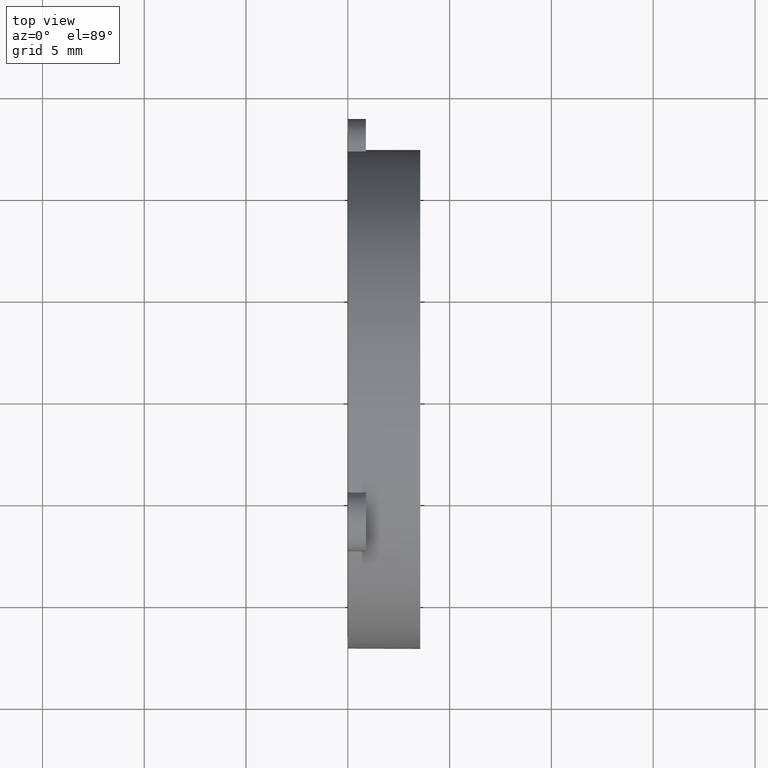
[diagram: clean part render]
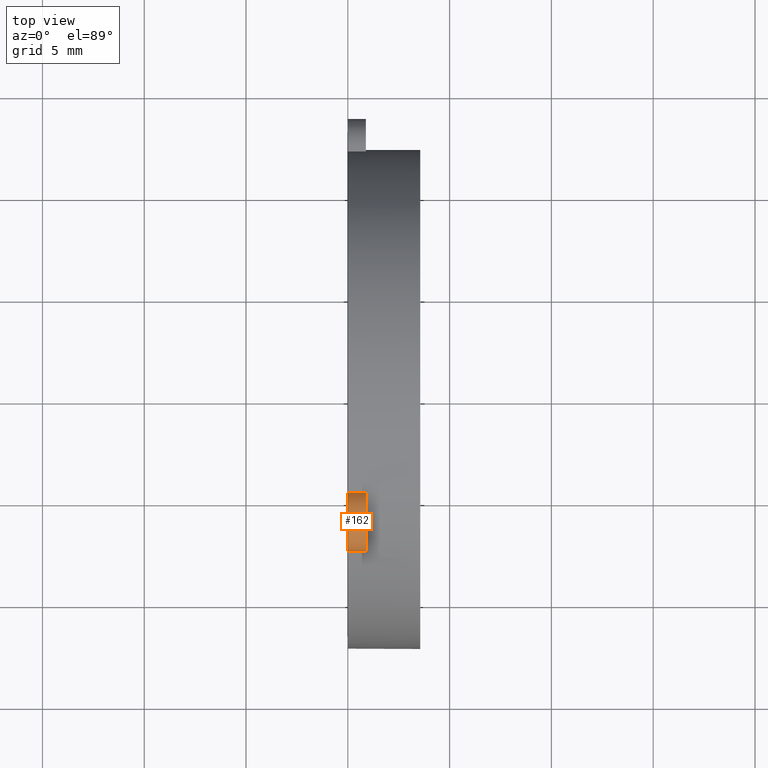
[diagram: same view with one face highlighted and labeled with its STEP entity id]
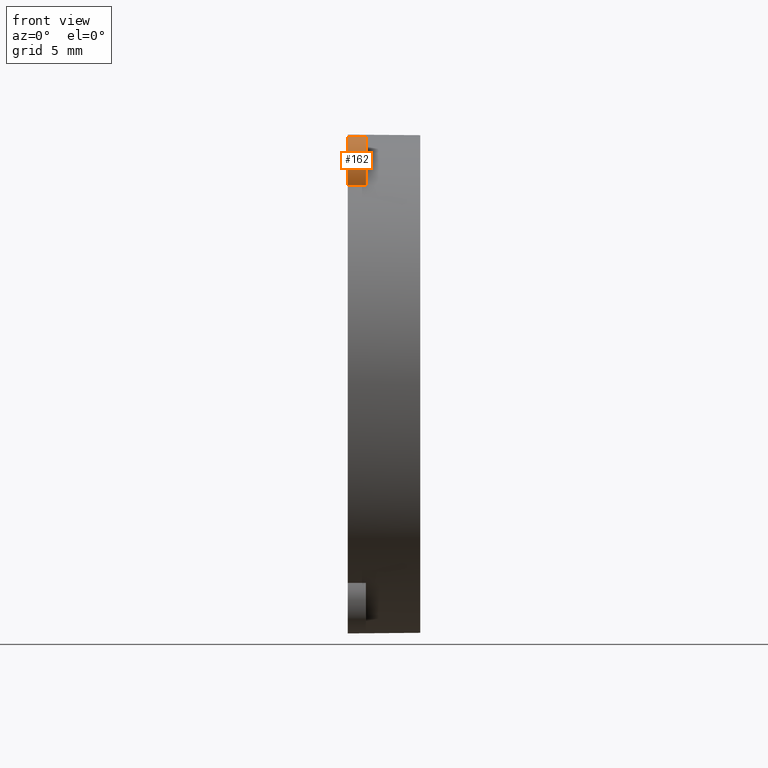
[diagram: same view with one face highlighted and labeled with its STEP entity id]
A machine part, top view. The second image highlights one B-rep face of the part: STEP entity #162.
A second angle (front view) of the same face is appended — the face is thin or edge-on in the first view.
In plain terms, the highlighted cylindrical surface (edge-blend (fillet) strip) has radius 1.524 mm, axis along (1, 0, 0).
Its self-contained STEP definition (entity closure, byte-faithful):
#23=LINE('',#285,#29);
#24=LINE('',#289,#30);
#29=VECTOR('',#229,0.393700787401575);
#30=VECTOR('',#232,0.393700787401575);
#33=CYLINDRICAL_SURFACE('',#186,0.06);
#40=FACE_OUTER_BOUND('',#50,.T.);
#50=EDGE_LOOP('',(#123,#124,#125,#126));
#66=CIRCLE('',#187,0.06);
#67=CIRCLE('',#188,0.06);
#83=VERTEX_POINT('',#283);
#84=VERTEX_POINT('',#284);
#85=VERTEX_POINT('',#286);
#86=VERTEX_POINT('',#288);
#100=EDGE_CURVE('',#83,#84,#23,.T.);
#101=EDGE_CURVE('',#83,#85,#66,.T.);
#102=EDGE_CURVE('',#86,#85,#24,.T.);
#103=EDGE_CURVE('',#84,#86,#67,.T.);
#123=ORIENTED_EDGE('',*,*,#100,.F.);
#124=ORIENTED_EDGE('',*,*,#101,.T.);
#125=ORIENTED_EDGE('',*,*,#102,.F.);
#126=ORIENTED_EDGE('',*,*,#103,.F.);
#162=ADVANCED_FACE('',(#40),#33,.T.);
#186=AXIS2_PLACEMENT_3D('',#282,#227,#228);
#187=AXIS2_PLACEMENT_3D('',#287,#230,#231);
#188=AXIS2_PLACEMENT_3D('',#290,#233,#234);
#227=DIRECTION('center_axis',(1.,0.,0.));
#228=DIRECTION('ref_axis',(0.,0.,-1.));
#229=DIRECTION('',(1.,0.,0.));
#230=DIRECTION('center_axis',(1.,0.,0.));
#231=DIRECTION('ref_axis',(0.,0.,-1.));
#232=DIRECTION('',(-1.,0.,0.));
#233=DIRECTION('center_axis',(1.,0.,0.));
#234=DIRECTION('ref_axis',(0.,0.,-1.));
#282=CARTESIAN_POINT('Origin',(0.,-0.24125,0.417857257325992));
#283=CARTESIAN_POINT('',(0.,-0.187523726451678,0.444568444694038));
#284=CARTESIAN_POINT('',(0.035,-0.187523726451678,0.444568444694038));
#285=CARTESIAN_POINT('',(0.,-0.187523726451678,0.444568444694038));
#286=CARTESIAN_POINT('',(0.,-0.291245703600135,0.384684533266496));
#287=CARTESIAN_POINT('Origin',(0.,-0.24125,0.417857257325992));
#288=CARTESIAN_POINT('',(0.035,-0.291245703600135,0.384684533266496));
#289=CARTESIAN_POINT('',(0.,-0.291245703600135,0.384684533266496));
#290=CARTESIAN_POINT('Origin',(0.035,-0.24125,0.417857257325992));